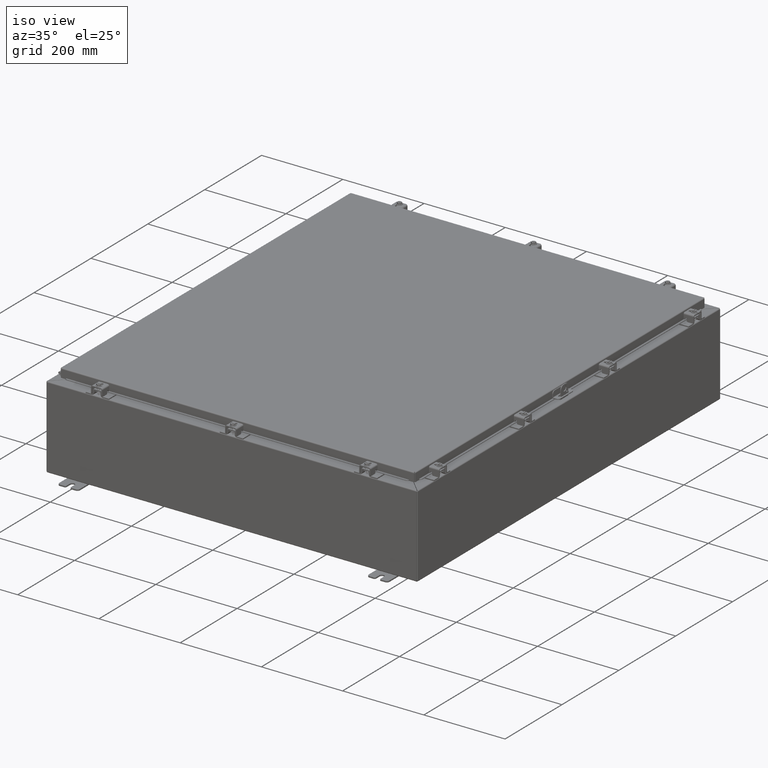
[diagram: clean part render]
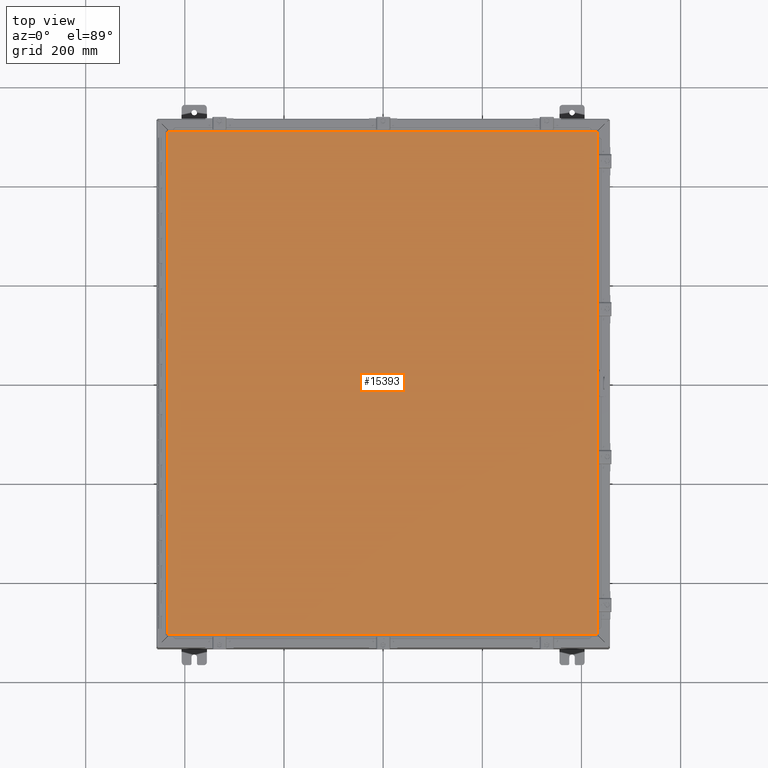
[diagram: tour spotlight — one face highlighted and labeled with its STEP entity id]
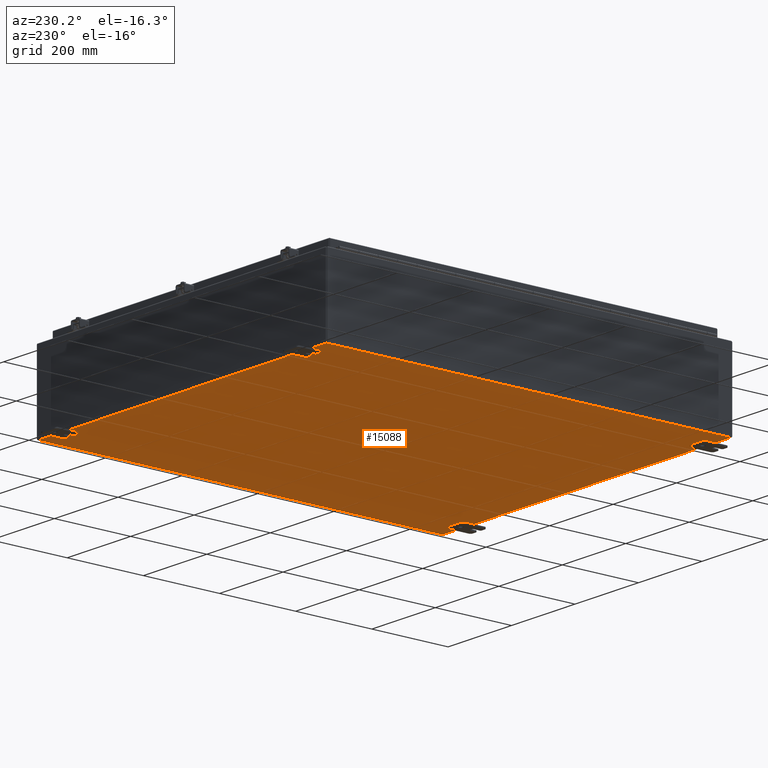
[diagram: tour spotlight — one face highlighted and labeled with its STEP entity id]
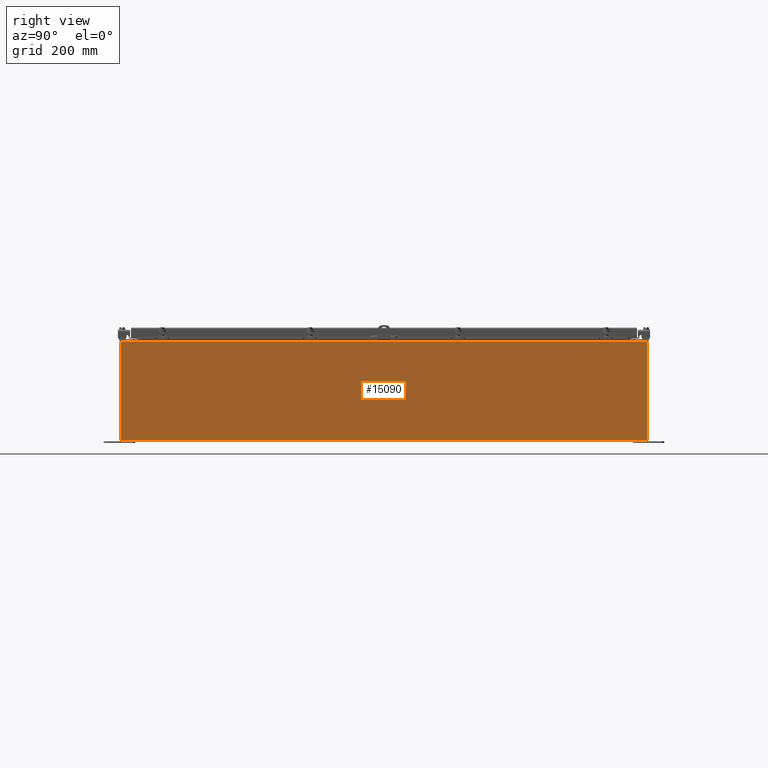
[diagram: tour spotlight — one face highlighted and labeled with its STEP entity id]
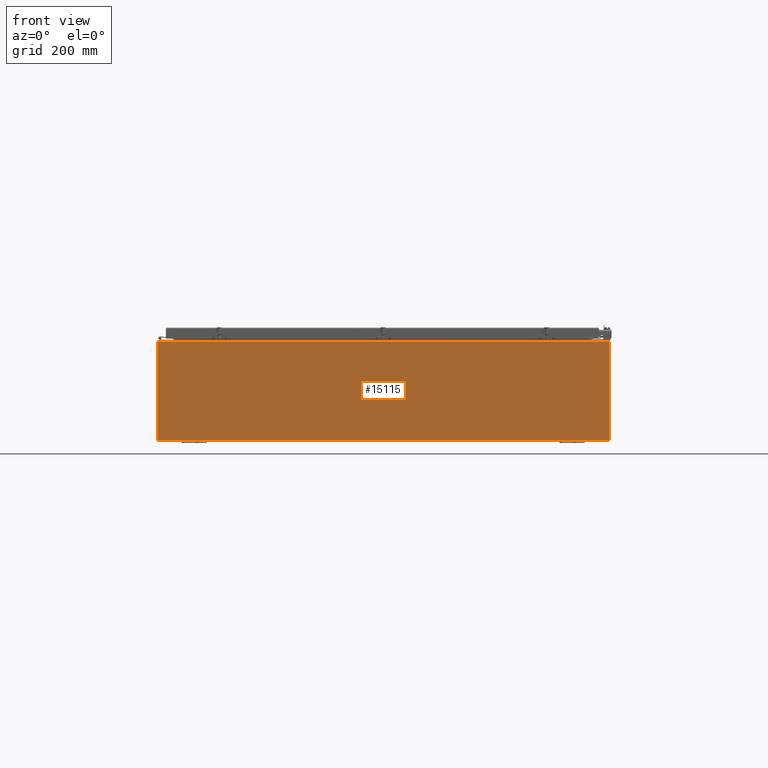
[diagram: tour spotlight — one face highlighted and labeled with its STEP entity id]
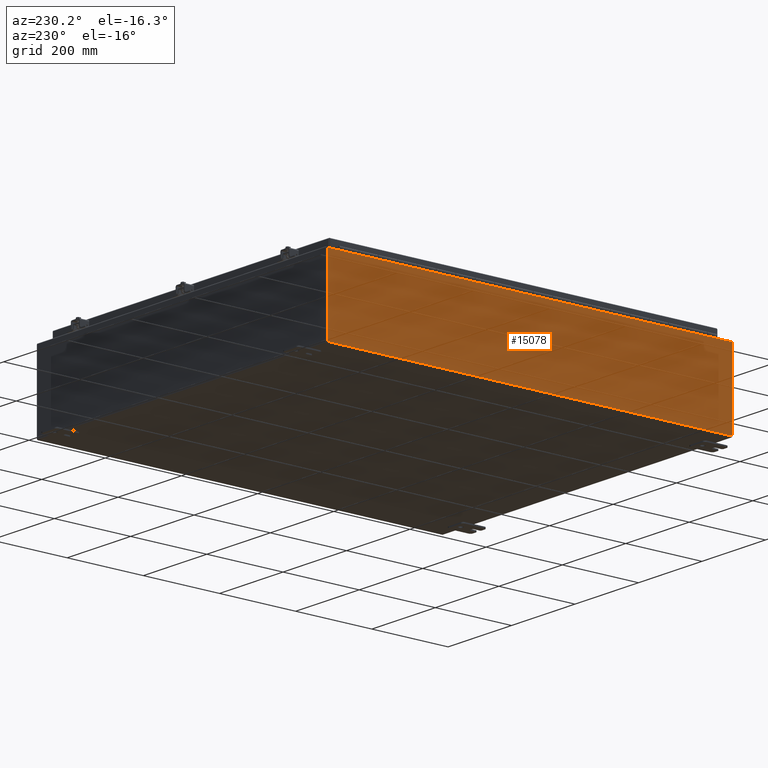
[diagram: tour spotlight — one face highlighted and labeled with its STEP entity id]
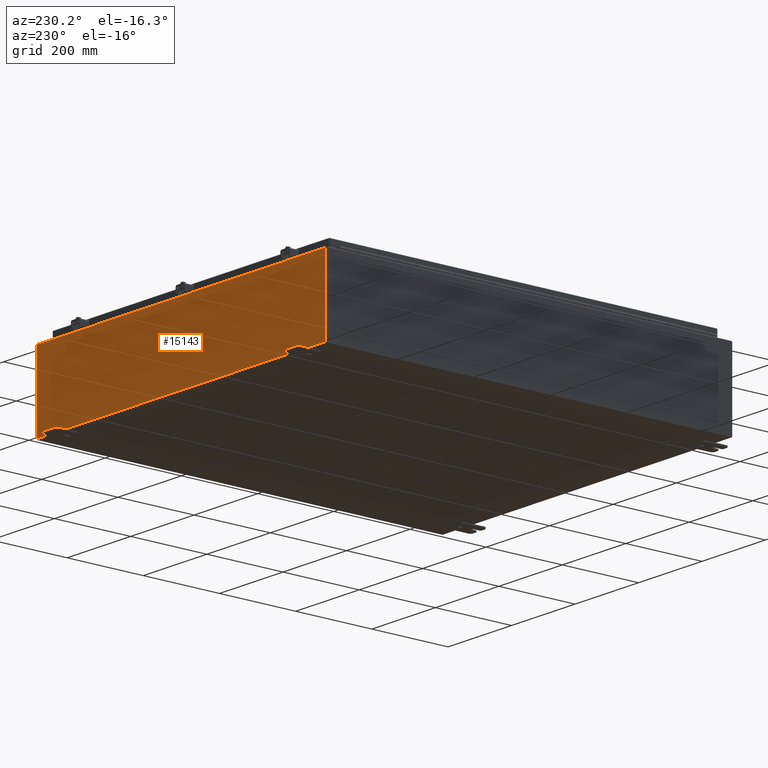
[diagram: tour spotlight — one face highlighted and labeled with its STEP entity id]
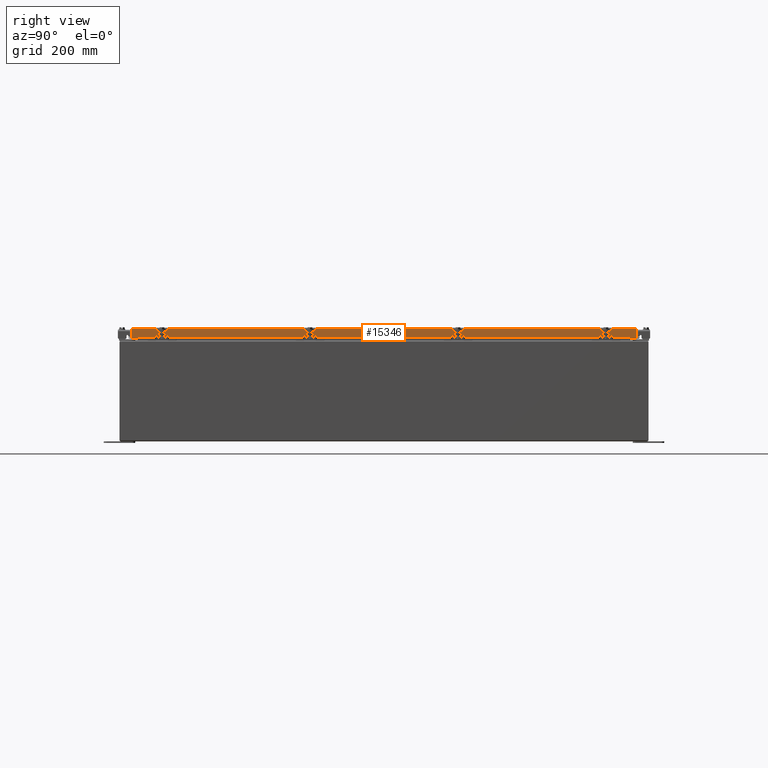
[diagram: tour spotlight — one face highlighted and labeled with its STEP entity id]
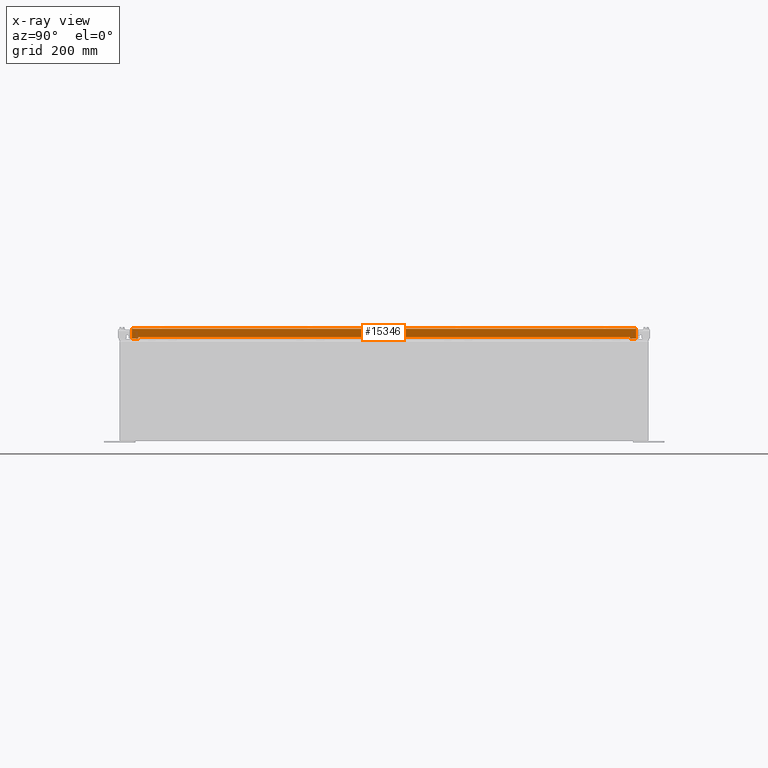
[diagram: x-ray of the same camera — body ghosted, this tour face saturated]
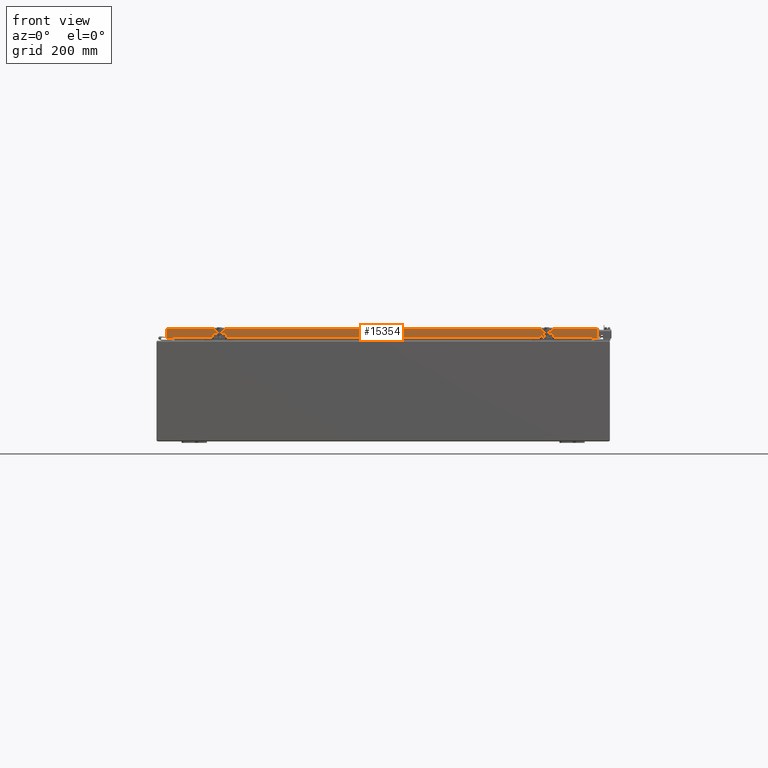
[diagram: tour spotlight — one face highlighted and labeled with its STEP entity id]
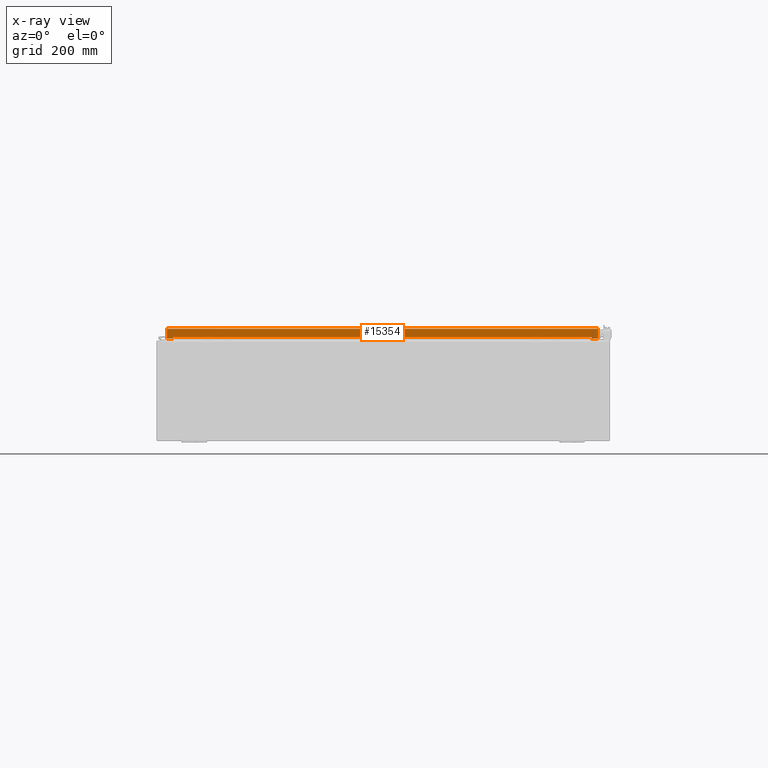
[diagram: x-ray of the same camera — body ghosted, this tour face saturated]
A machine part: a face-by-face anatomy tour. The part has 2137 B-rep faces; the first image is the clean iso view, then the 8 largest visible faces are spotlighted one at a time (largest first), each with its STEP entity span.

Face 1 — top view, entity #15393. In plain terms, the highlighted planar face has unit normal (0, -0, -1).
Definition (entity closure, byte-faithful):
#1534=PLANE('',#16301);
#2176=FACE_OUTER_BOUND('',#3037,.T.);
#3037=EDGE_LOOP('',(#12104,#12105,#12106,#12107));
#4059=LINE('',#25088,#5479);
#4065=LINE('',#25209,#5485);
#4075=LINE('',#25362,#5495);
#4078=LINE('',#25395,#5498);
#5479=VECTOR('',#18502,34.1645);
#5485=VECTOR('',#18516,34.1645);
#5495=VECTOR('',#18538,39.977);
#5498=VECTOR('',#18547,39.977);
#7380=VERTEX_POINT('',#25079);
#7381=VERTEX_POINT('',#25087);
#7384=VERTEX_POINT('',#25157);
#7385=VERTEX_POINT('',#25201);
#9096=EDGE_CURVE('',#7381,#7380,#4059,.T.);
#9109=EDGE_CURVE('',#7384,#7385,#4065,.T.);
#9126=EDGE_CURVE('',#7380,#7384,#4075,.T.);
#9130=EDGE_CURVE('',#7385,#7381,#4078,.T.);
#12104=ORIENTED_EDGE('',*,*,#9126,.T.);
#12105=ORIENTED_EDGE('',*,*,#9109,.T.);
#12106=ORIENTED_EDGE('',*,*,#9130,.T.);
#12107=ORIENTED_EDGE('',*,*,#9096,.T.);
#15393=ADVANCED_FACE('',(#2176),#1534,.F.);
#16301=AXIS2_PLACEMENT_3D('',#25475,#18561,#18562);
#18502=DIRECTION('',(-1.,-8.16292020079576E-17,0.));
#18516=DIRECTION('',(1.,0.,0.));
#18538=DIRECTION('',(-1.39951089151873E-16,1.,0.));
#18547=DIRECTION('',(0.,-1.,0.));
#18561=DIRECTION('center_axis',(0.,0.,1.));
#18562=DIRECTION('ref_axis',(1.,0.,0.));
#25079=CARTESIAN_POINT('',(-17.08225,-19.9885,-3.27821759239712E-17));
#25087=CARTESIAN_POINT('',(17.08225,-19.9885,-2.18547839493141E-17));
#25088=CARTESIAN_POINT('',(8.541125,-19.9885,0.));
#25157=CARTESIAN_POINT('',(-17.08225,19.9885,-3.27821759239712E-17));
#25201=CARTESIAN_POINT('',(17.08225,19.9885,-3.27821759239712E-17));
#25209=CARTESIAN_POINT('',(-8.59375,19.9885,0.));
#25362=CARTESIAN_POINT('',(-17.08225,-9.99425,0.));
#25395=CARTESIAN_POINT('',(17.08225,9.99425,0.));
#25475=CARTESIAN_POINT('Origin',(-2.09805925913415E-15,6.55429683665806E-15,
0.));

Face 2 — auxiliary view, entity #15088. In plain terms, the highlighted planar face has unit normal (0, 0, 1).
Definition (entity closure, byte-faithful):
#1381=PLANE('',#15988);
#1871=FACE_OUTER_BOUND('',#2722,.T.);
#2722=EDGE_LOOP('',(#10736,#10737,#10738,#10739));
#3619=LINE('',#21544,#5039);
#3641=LINE('',#21695,#5061);
#3642=LINE('',#21697,#5062);
#3643=LINE('',#21698,#5063);
#5039=VECTOR('',#17436,41.7895);
#5061=VECTOR('',#17496,35.7895);
#5062=VECTOR('',#17497,41.7895);
#5063=VECTOR('',#17498,35.7895);
#6981=VERTEX_POINT('',#21535);
#6982=VERTEX_POINT('',#21543);
#7015=VERTEX_POINT('',#21694);
#7016=VERTEX_POINT('',#21696);
#8425=EDGE_CURVE('',#6982,#6981,#3619,.T.);
#8468=EDGE_CURVE('',#6981,#7015,#3641,.T.);
#8469=EDGE_CURVE('',#7015,#7016,#3642,.T.);
#8470=EDGE_CURVE('',#7016,#6982,#3643,.T.);
#10736=ORIENTED_EDGE('',*,*,#8425,.T.);
#10737=ORIENTED_EDGE('',*,*,#8468,.T.);
#10738=ORIENTED_EDGE('',*,*,#8469,.T.);
#10739=ORIENTED_EDGE('',*,*,#8470,.T.);
#15088=ADVANCED_FACE('',(#1871),#1381,.F.);
#15988=AXIS2_PLACEMENT_3D('',#21693,#17494,#17495);
#17436=DIRECTION('',(-1.33881111069154E-16,1.,0.));
#17494=DIRECTION('center_axis',(0.,0.,1.));
#17495=DIRECTION('ref_axis',(1.,0.,0.));
#17496=DIRECTION('',(1.,0.,0.));
#17497=DIRECTION('',(0.,-1.,0.));
#17498=DIRECTION('',(-1.,-1.56325869068425E-16,0.));
#21535=CARTESIAN_POINT('',(-17.89475,20.89475,-1.09273919746571E-17));
#21543=CARTESIAN_POINT('',(-17.89475,-20.89475,-1.09273919746571E-17));
#21544=CARTESIAN_POINT('',(-17.89475,-10.447375,0.));
#21693=CARTESIAN_POINT('Origin',(-4.19611851826831E-15,3.49676543189026E-15,
0.));
#21694=CARTESIAN_POINT('',(17.89475,20.89475,-2.18547839493141E-17));
#21695=CARTESIAN_POINT('',(-8.947375,20.89475,0.));
#21696=CARTESIAN_POINT('',(17.89475,-20.89475,-3.27821759239712E-17));
#21697=CARTESIAN_POINT('',(17.89475,10.447375,0.));
#21698=CARTESIAN_POINT('',(8.947375,-20.89475,0.));

Face 3 — right view, entity #15090. In plain terms, the highlighted planar face has unit normal (-1, 0, 0).
Definition (entity closure, byte-faithful):
#1382=PLANE('',#15990);
#1873=FACE_OUTER_BOUND('',#2724,.T.);
#2724=EDGE_LOOP('',(#10744,#10745,#10746,#10747));
#3644=LINE('',#21709,#5064);
#3645=LINE('',#21719,#5065);
#3646=LINE('',#21721,#5066);
#3647=LINE('',#21722,#5067);
#5064=VECTOR('',#17501,41.8505857864376);
#5065=VECTOR('',#17504,7.7895);
#5066=VECTOR('',#17505,41.8505857864376);
#5067=VECTOR('',#17506,7.7895);
#7017=VERTEX_POINT('',#21700);
#7018=VERTEX_POINT('',#21708);
#7019=VERTEX_POINT('',#21718);
#7020=VERTEX_POINT('',#21720);
#8472=EDGE_CURVE('',#7018,#7017,#3644,.T.);
#8474=EDGE_CURVE('',#7019,#7017,#3645,.T.);
#8475=EDGE_CURVE('',#7019,#7020,#3646,.T.);
#8476=EDGE_CURVE('',#7018,#7020,#3647,.T.);
#10744=ORIENTED_EDGE('',*,*,#8472,.T.);
#10745=ORIENTED_EDGE('',*,*,#8474,.F.);
#10746=ORIENTED_EDGE('',*,*,#8475,.T.);
#10747=ORIENTED_EDGE('',*,*,#8476,.F.);
#15090=ADVANCED_FACE('',(#1873),#1382,.F.);
#15990=AXIS2_PLACEMENT_3D('',#21717,#17502,#17503);
#17501=DIRECTION('',(9.60540784130798E-19,1.,-5.17760573407768E-33));
#17502=DIRECTION('center_axis',(-1.,9.60540784130798E-19,5.25392373732437E-15));
#17503=DIRECTION('ref_axis',(9.02389274415327E-15,0.,1.));
#17504=DIRECTION('',(-5.39030285815812E-15,0.,-1.));
#17505=DIRECTION('',(-9.60540784129393E-19,-1.,2.67371392103071E-16));
#17506=DIRECTION('',(5.39030285815812E-15,0.,1.));
#21700=CARTESIAN_POINT('',(18.,20.9252928932188,0.105250000000001));
#21708=CARTESIAN_POINT('',(18.,-20.9252928932188,0.105250000000007));
#21709=CARTESIAN_POINT('',(18.,-8.74221566980225E-16,0.105250000000001));
#21717=CARTESIAN_POINT('Origin',(18.,-1.74838271594513E-15,4.02127600340134));
#21718=CARTESIAN_POINT('',(18.,20.9252928932188,7.89475));
#21719=CARTESIAN_POINT('',(18.,20.9252928932188,0.105250000000001));
#21720=CARTESIAN_POINT('',(18.,-20.9252928932188,7.89475000000001));
#21721=CARTESIAN_POINT('',(18.,10.4626464466094,7.89475));
#21722=CARTESIAN_POINT('',(18.,-20.9252928932188,0.105250000000007));

Face 4 — front view, entity #15115. In plain terms, the highlighted planar face has unit normal (-0, 1, 0).
Definition (entity closure, byte-faithful):
#1396=PLANE('',#16021);
#1898=FACE_OUTER_BOUND('',#2749,.T.);
#2749=EDGE_LOOP('',(#10861,#10862,#10863,#10864));
#3700=LINE('',#22103,#5120);
#3701=LINE('',#22121,#5121);
#3702=LINE('',#22122,#5122);
#3703=LINE('',#22123,#5123);
#5120=VECTOR('',#17619,35.8505857864376);
#5121=VECTOR('',#17622,35.8505857864376);
#5122=VECTOR('',#17623,7.7895);
#5123=VECTOR('',#17624,7.7895);
#7089=VERTEX_POINT('',#22101);
#7090=VERTEX_POINT('',#22102);
#7091=VERTEX_POINT('',#22119);
#7092=VERTEX_POINT('',#22120);
#8564=EDGE_CURVE('',#7089,#7090,#3700,.T.);
#8567=EDGE_CURVE('',#7091,#7092,#3701,.T.);
#8568=EDGE_CURVE('',#7089,#7092,#3702,.T.);
#8569=EDGE_CURVE('',#7091,#7090,#3703,.T.);
#10861=ORIENTED_EDGE('',*,*,#8567,.T.);
#10862=ORIENTED_EDGE('',*,*,#8568,.F.);
#10863=ORIENTED_EDGE('',*,*,#8564,.T.);
#10864=ORIENTED_EDGE('',*,*,#8569,.F.);
#15115=ADVANCED_FACE('',(#1898),#1396,.F.);
#16021=AXIS2_PLACEMENT_3D('',#22118,#17620,#17621);
#17619=DIRECTION('',(-1.,-1.53925497455997E-16,1.56059505536474E-16));
#17620=DIRECTION('center_axis',(-1.53925497455997E-16,1.,5.25291982588934E-15));
#17621=DIRECTION('ref_axis',(1.,0.,0.));
#17622=DIRECTION('',(1.,1.53925497455997E-16,-8.01160453404511E-33));
#17623=DIRECTION('',(-8.38164711797325E-31,5.39030285815812E-15,-1.));
#17624=DIRECTION('',(8.38164711797325E-31,-5.39030285815812E-15,1.));
#22101=CARTESIAN_POINT('',(17.9252928932188,-21.,7.89475));
#22102=CARTESIAN_POINT('',(-17.9252928932188,-21.,7.89475000000001));
#22103=CARTESIAN_POINT('',(8.9626464466094,-21.,7.89475));
#22118=CARTESIAN_POINT('Origin',(-2.35100148573447E-15,-21.,4.02153807738617));
#22119=CARTESIAN_POINT('',(-17.9252928932188,-21.,0.105250000000001));
#22120=CARTESIAN_POINT('',(17.9252928932188,-21.,0.105250000000001));
#22121=CARTESIAN_POINT('',(-1.16736894117134E-15,-21.,0.105249999999998));
#22122=CARTESIAN_POINT('',(17.9252928932188,-21.,0.105250000000001));
#22123=CARTESIAN_POINT('',(-17.9252928932188,-21.,0.105250000000001));

Face 5 — auxiliary view, entity #15078. In plain terms, the highlighted planar face has unit normal (1, 0, 0).
Definition (entity closure, byte-faithful):
#1376=PLANE('',#15970);
#1861=FACE_OUTER_BOUND('',#2712,.T.);
#2712=EDGE_LOOP('',(#10686,#10687,#10688,#10689));
#3618=LINE('',#21534,#5038);
#3620=LINE('',#21555,#5040);
#3621=LINE('',#21556,#5041);
#3622=LINE('',#21557,#5042);
#5038=VECTOR('',#17435,41.8505857864376);
#5040=VECTOR('',#17439,41.8505857864376);
#5041=VECTOR('',#17440,7.7895);
#5042=VECTOR('',#17441,7.7895);
#6979=VERTEX_POINT('',#21532);
#6980=VERTEX_POINT('',#21533);
#6983=VERTEX_POINT('',#21553);
#6984=VERTEX_POINT('',#21554);
#8423=EDGE_CURVE('',#6979,#6980,#3618,.T.);
#8427=EDGE_CURVE('',#6983,#6984,#3620,.T.);
#8428=EDGE_CURVE('',#6979,#6984,#3621,.T.);
#8429=EDGE_CURVE('',#6983,#6980,#3622,.T.);
#10686=ORIENTED_EDGE('',*,*,#8427,.T.);
#10687=ORIENTED_EDGE('',*,*,#8428,.F.);
#10688=ORIENTED_EDGE('',*,*,#8423,.T.);
#10689=ORIENTED_EDGE('',*,*,#8429,.F.);
#15078=ADVANCED_FACE('',(#1861),#1376,.F.);
#15970=AXIS2_PLACEMENT_3D('',#21552,#17437,#17438);
#17435=DIRECTION('',(1.32115673122401E-16,-1.,-5.89935534470948E-33));
#17437=DIRECTION('center_axis',(1.,1.32115673122401E-16,5.25319081936691E-15));
#17438=DIRECTION('ref_axis',(9.02389274415327E-15,-1.33210111691057E-16,
-1.));
#17439=DIRECTION('',(-1.32115673122401E-16,1.,1.33685696051535E-16));
#17440=DIRECTION('',(-5.39030285815812E-15,-7.14905195356542E-31,1.));
#17441=DIRECTION('',(5.39030285815812E-15,7.14905195356542E-31,-1.));
#21532=CARTESIAN_POINT('',(-18.,20.9252928932188,0.105250000000007));
#21533=CARTESIAN_POINT('',(-18.,-20.9252928932188,0.105250000000001));
#21534=CARTESIAN_POINT('',(-18.,2.17449295710507E-15,0.105250000000004));
#21552=CARTESIAN_POINT('Origin',(-18.,1.56552509276744E-15,4.02127600340134));
#21553=CARTESIAN_POINT('',(-18.,-20.9252928932188,7.89475));
#21554=CARTESIAN_POINT('',(-18.,20.9252928932188,7.89475000000001));
#21555=CARTESIAN_POINT('',(-18.,-10.4626464466094,7.89475));
#21556=CARTESIAN_POINT('',(-18.,20.9252928932188,0.105250000000007));
#21557=CARTESIAN_POINT('',(-18.,-20.9252928932188,0.105250000000001));

Face 6 — auxiliary view, entity #15143. In plain terms, the highlighted planar face has unit normal (-0, -1, 0).
Definition (entity closure, byte-faithful):
#1404=PLANE('',#16052);
#1926=FACE_OUTER_BOUND('',#2777,.T.);
#2777=EDGE_LOOP('',(#10991,#10992,#10993,#10994));
#3739=LINE('',#22727,#5159);
#3740=LINE('',#22737,#5160);
#3741=LINE('',#22739,#5161);
#3742=LINE('',#22740,#5162);
#5159=VECTOR('',#17720,35.8505857864376);
#5160=VECTOR('',#17723,7.7895);
#5161=VECTOR('',#17724,35.8505857864376);
#5162=VECTOR('',#17725,7.7895);
#7145=VERTEX_POINT('',#22718);
#7146=VERTEX_POINT('',#22726);
#7147=VERTEX_POINT('',#22736);
#7148=VERTEX_POINT('',#22738);
#8656=EDGE_CURVE('',#7146,#7145,#3739,.T.);
#8658=EDGE_CURVE('',#7147,#7145,#3740,.T.);
#8659=EDGE_CURVE('',#7147,#7148,#3741,.T.);
#8660=EDGE_CURVE('',#7146,#7148,#3742,.T.);
#10991=ORIENTED_EDGE('',*,*,#8656,.T.);
#10992=ORIENTED_EDGE('',*,*,#8658,.F.);
#10993=ORIENTED_EDGE('',*,*,#8659,.T.);
#10994=ORIENTED_EDGE('',*,*,#8660,.F.);
#15143=ADVANCED_FACE('',(#1926),#1404,.F.);
#16052=AXIS2_PLACEMENT_3D('',#22735,#17721,#17722);
#17720=DIRECTION('',(1.,-1.30385140683498E-18,1.56059505536474E-16));
#17721=DIRECTION('center_axis',(-1.3038514068358E-18,-1.,5.25273705619179E-15));
#17722=DIRECTION('ref_axis',(1.,0.,0.));
#17723=DIRECTION('',(0.,5.39030285815812E-15,1.));
#17724=DIRECTION('',(-1.,1.3038514068358E-18,-7.02815396488051E-33));
#17725=DIRECTION('',(0.,-5.39030285815812E-15,-1.));
#22718=CARTESIAN_POINT('',(17.9252928932188,21.,7.89475));
#22726=CARTESIAN_POINT('',(-17.9252928932188,21.,7.89475));
#22727=CARTESIAN_POINT('',(-8.9626464466094,21.,7.89475));
#22735=CARTESIAN_POINT('Origin',(1.04902962956708E-15,21.,4.02153807738617));
#22736=CARTESIAN_POINT('',(17.9252928932188,21.,0.105250000000001));
#22737=CARTESIAN_POINT('',(17.9252928932188,21.,0.105250000000001));
#22738=CARTESIAN_POINT('',(-17.9252928932188,21.,0.105249999999998));
#22739=CARTESIAN_POINT('',(-8.74150351845819E-16,21.,0.105250000000001));
#22740=CARTESIAN_POINT('',(-17.9252928932188,21.,0.105249999999998));

Face 7 — right view, entity #15346. An x-ray twin of the same camera follows (body ghosted, this face saturated) — the face is partly hidden behind the body. In plain terms, the highlighted planar face has unit normal (-1, -0, -0).
Definition (entity closure, byte-faithful):
#1508=PLANE('',#16267);
#2129=FACE_OUTER_BOUND('',#2990,.T.);
#2990=EDGE_LOOP('',(#11888,#11889,#11890,#11891,#11892,#11893,#11894,#11895,
#11896,#11897,#11898,#11899));
#3954=LINE('',#24756,#5374);
#3997=LINE('',#24858,#5417);
#4000=LINE('',#24866,#5420);
#4003=LINE('',#24870,#5423);
#4013=LINE('',#24891,#5433);
#4015=LINE('',#24895,#5435);
#4017=LINE('',#24898,#5437);
#4018=LINE('',#24901,#5438);
#4019=LINE('',#24903,#5439);
#4020=LINE('',#24905,#5440);
#4021=LINE('',#24907,#5441);
#4022=LINE('',#24908,#5442);
#5374=VECTOR('',#18295,39.0380857864376);
#5417=VECTOR('',#18396,0.000199999999999981);
#5420=VECTOR('',#18401,0.10545);
#5423=VECTOR('',#18406,0.00020000000000138);
#5433=VECTOR('',#18420,0.10545);
#5435=VECTOR('',#18424,0.000199999999999981);
#5437=VECTOR('',#18428,0.00020000000000138);
#5438=VECTOR('',#18431,0.4998);
#5439=VECTOR('',#18432,0.76975);
#5440=VECTOR('',#18433,40.0380857864376);
#5441=VECTOR('',#18434,0.76975);
#5442=VECTOR('',#18435,0.499800000000005);
#7305=VERTEX_POINT('',#24747);
#7306=VERTEX_POINT('',#24751);
#7336=VERTEX_POINT('',#24856);
#7339=VERTEX_POINT('',#24863);
#7340=VERTEX_POINT('',#24865);
#7348=VERTEX_POINT('',#24888);
#7349=VERTEX_POINT('',#24890);
#7350=VERTEX_POINT('',#24894);
#7351=VERTEX_POINT('',#24900);
#7352=VERTEX_POINT('',#24902);
#7353=VERTEX_POINT('',#24904);
#7354=VERTEX_POINT('',#24906);
#8974=EDGE_CURVE('',#7305,#7306,#3954,.T.);
#9025=EDGE_CURVE('',#7306,#7336,#3997,.T.);
#9028=EDGE_CURVE('',#7340,#7339,#4000,.T.);
#9031=EDGE_CURVE('',#7336,#7340,#4003,.T.);
#9041=EDGE_CURVE('',#7349,#7348,#4013,.T.);
#9043=EDGE_CURVE('',#7350,#7305,#4015,.T.);
#9045=EDGE_CURVE('',#7348,#7350,#4017,.T.);
#9046=EDGE_CURVE('',#7351,#7339,#4018,.T.);
#9047=EDGE_CURVE('',#7352,#7351,#4019,.T.);
#9048=EDGE_CURVE('',#7352,#7353,#4020,.T.);
#9049=EDGE_CURVE('',#7354,#7353,#4021,.T.);
#9050=EDGE_CURVE('',#7349,#7354,#4022,.T.);
#11888=ORIENTED_EDGE('',*,*,#9028,.T.);
#11889=ORIENTED_EDGE('',*,*,#9046,.F.);
#11890=ORIENTED_EDGE('',*,*,#9047,.F.);
#11891=ORIENTED_EDGE('',*,*,#9048,.T.);
#11892=ORIENTED_EDGE('',*,*,#9049,.F.);
#11893=ORIENTED_EDGE('',*,*,#9050,.F.);
#11894=ORIENTED_EDGE('',*,*,#9041,.T.);
#11895=ORIENTED_EDGE('',*,*,#9045,.T.);
#11896=ORIENTED_EDGE('',*,*,#9043,.T.);
#11897=ORIENTED_EDGE('',*,*,#8974,.T.);
#11898=ORIENTED_EDGE('',*,*,#9025,.T.);
#11899=ORIENTED_EDGE('',*,*,#9031,.T.);
#15346=ADVANCED_FACE('',(#2129),#1508,.F.);
#16267=AXIS2_PLACEMENT_3D('',#24899,#18429,#18430);
#18295=DIRECTION('',(-1.15569155073123E-18,-1.,5.46105711422253E-33));
#18396=DIRECTION('',(-4.0343628283179E-15,0.,-1.));
#18401=DIRECTION('',(4.0343628283179E-15,0.,1.));
#18406=DIRECTION('',(-1.15569155073123E-18,-1.,4.0957928356669E-33));
#18420=DIRECTION('',(-4.0343628283179E-15,0.,-1.));
#18424=DIRECTION('',(4.0343628283179E-15,0.,1.));
#18428=DIRECTION('',(-1.15569155073123E-18,-1.,4.0957928356669E-33));
#18429=DIRECTION('center_axis',(-1.,1.15569155073123E-18,4.0343628283179E-15));
#18430=DIRECTION('ref_axis',(0.,0.,1.));
#18431=DIRECTION('',(0.,1.,0.));
#18432=DIRECTION('',(5.39030285815812E-15,0.,1.));
#18433=DIRECTION('',(1.15569155073123E-18,1.,-6.22952746905573E-33));
#18434=DIRECTION('',(-5.39030285815812E-15,0.,-1.));
#18435=DIRECTION('',(0.,1.,0.));
#24747=CARTESIAN_POINT('',(17.1875,19.5190428932188,0.769749999999998));
#24751=CARTESIAN_POINT('',(17.1875,-19.5190428932188,0.769749999999998));
#24756=CARTESIAN_POINT('',(17.1875,-9.7595214466094,0.769749999999998));
#24856=CARTESIAN_POINT('',(17.1875,-19.5190428932188,0.769549999999998));
#24858=CARTESIAN_POINT('',(17.1875,-19.5190428932188,0.613331557289605));
#24863=CARTESIAN_POINT('',(17.1875,-19.5192428932188,0.874999999999999));
#24865=CARTESIAN_POINT('',(17.1875,-19.5192428932188,0.769549999999998));
#24866=CARTESIAN_POINT('',(17.1875,-19.5192428932188,0.666056557289605));
#24870=CARTESIAN_POINT('',(17.1875,-9.75962144660941,0.769549999999998));
#24888=CARTESIAN_POINT('',(17.1875,19.5192428932188,0.769549999999998));
#24890=CARTESIAN_POINT('',(17.1875,19.5192428932188,0.874999999999999));
#24891=CARTESIAN_POINT('',(17.1875,19.5192428932188,0.613331557289605));
#24894=CARTESIAN_POINT('',(17.1875,19.5190428932188,0.769549999999998));
#24895=CARTESIAN_POINT('',(17.1875,19.5190428932188,0.666056557289605));
#24898=CARTESIAN_POINT('',(17.1875,9.7595214466094,0.769549999999998));
#24899=CARTESIAN_POINT('Origin',(17.1875,0.,0.457113114579211));
#24900=CARTESIAN_POINT('',(17.1875,-20.0190428932188,0.874999999999999));
#24901=CARTESIAN_POINT('',(17.1875,-20.0190428932188,0.874999999999999));
#24902=CARTESIAN_POINT('',(17.1875,-20.0190428932188,0.105250000000001));
#24903=CARTESIAN_POINT('',(17.1875,-20.0190428932188,0.105250000000001));
#24904=CARTESIAN_POINT('',(17.1875,20.0190428932188,0.105250000000001));
#24905=CARTESIAN_POINT('',(17.1875,2.79737599901293E-15,0.105250000000001));
#24906=CARTESIAN_POINT('',(17.1875,20.0190428932188,0.874999999999999));
#24907=CARTESIAN_POINT('',(17.1875,20.0190428932188,0.105250000000001));
#24908=CARTESIAN_POINT('',(17.1875,-20.0190428932188,0.874999999999999));

Face 8 — front view, entity #15354. An x-ray twin of the same camera follows (body ghosted, this face saturated) — the face is partly hidden behind the body. In plain terms, the highlighted planar face has unit normal (-0, 1, -0).
Definition (entity closure, byte-faithful):
#1516=PLANE('',#16275);
#2137=FACE_OUTER_BOUND('',#2998,.T.);
#2998=EDGE_LOOP('',(#11936,#11937,#11938,#11939,#11940,#11941,#11942,#11943,
#11944,#11945,#11946,#11947));
#3960=LINE('',#24776,#5380);
#4025=LINE('',#24914,#5445);
#4028=LINE('',#24922,#5448);
#4031=LINE('',#24926,#5451);
#4041=LINE('',#24947,#5461);
#4043=LINE('',#24951,#5463);
#4045=LINE('',#24954,#5465);
#4046=LINE('',#24957,#5466);
#4047=LINE('',#24959,#5467);
#4048=LINE('',#24961,#5468);
#4049=LINE('',#24963,#5469);
#4050=LINE('',#24964,#5470);
#5380=VECTOR('',#18321,33.2255857864376);
#5445=VECTOR('',#18440,0.000199999999999981);
#5448=VECTOR('',#18445,0.10545);
#5451=VECTOR('',#18450,0.00020000000000138);
#5461=VECTOR('',#18464,0.10545);
#5463=VECTOR('',#18468,0.000199999999999981);
#5465=VECTOR('',#18472,0.00020000000000138);
#5466=VECTOR('',#18475,0.4998);
#5467=VECTOR('',#18476,0.76975);
#5468=VECTOR('',#18477,34.2255857864376);
#5469=VECTOR('',#18478,0.769749999999994);
#5470=VECTOR('',#18479,0.4998);
#7309=VERTEX_POINT('',#24765);
#7310=VERTEX_POINT('',#24769);
#7356=VERTEX_POINT('',#24912);
#7359=VERTEX_POINT('',#24919);
#7360=VERTEX_POINT('',#24921);
#7368=VERTEX_POINT('',#24944);
#7369=VERTEX_POINT('',#24946);
#7370=VERTEX_POINT('',#24950);
#7371=VERTEX_POINT('',#24956);
#7372=VERTEX_POINT('',#24958);
#7373=VERTEX_POINT('',#24960);
#7374=VERTEX_POINT('',#24962);
#8984=EDGE_CURVE('',#7309,#7310,#3960,.T.);
#9053=EDGE_CURVE('',#7310,#7356,#4025,.T.);
#9056=EDGE_CURVE('',#7360,#7359,#4028,.T.);
#9059=EDGE_CURVE('',#7356,#7360,#4031,.T.);
#9069=EDGE_CURVE('',#7369,#7368,#4041,.T.);
#9071=EDGE_CURVE('',#7370,#7309,#4043,.T.);
#9073=EDGE_CURVE('',#7368,#7370,#4045,.T.);
#9074=EDGE_CURVE('',#7371,#7359,#4046,.T.);
#9075=EDGE_CURVE('',#7372,#7371,#4047,.T.);
#9076=EDGE_CURVE('',#7372,#7373,#4048,.T.);
#9077=EDGE_CURVE('',#7374,#7373,#4049,.T.);
#9078=EDGE_CURVE('',#7369,#7374,#4050,.T.);
#11936=ORIENTED_EDGE('',*,*,#9056,.T.);
#11937=ORIENTED_EDGE('',*,*,#9074,.F.);
#11938=ORIENTED_EDGE('',*,*,#9075,.F.);
#11939=ORIENTED_EDGE('',*,*,#9076,.T.);
#11940=ORIENTED_EDGE('',*,*,#9077,.F.);
#11941=ORIENTED_EDGE('',*,*,#9078,.F.);
#11942=ORIENTED_EDGE('',*,*,#9069,.T.);
#11943=ORIENTED_EDGE('',*,*,#9073,.T.);
#11944=ORIENTED_EDGE('',*,*,#9071,.T.);
#11945=ORIENTED_EDGE('',*,*,#8984,.T.);
#11946=ORIENTED_EDGE('',*,*,#9053,.T.);
#11947=ORIENTED_EDGE('',*,*,#9059,.T.);
#15354=ADVANCED_FACE('',(#2137),#1516,.F.);
#16275=AXIS2_PLACEMENT_3D('',#24955,#18473,#18474);
#18321=DIRECTION('',(1.,-1.43350694494385E-18,4.04623155390475E-31));
#18440=DIRECTION('',(0.,-4.03001146476663E-15,-1.));
#18445=DIRECTION('',(0.,4.03001146476663E-15,1.));
#18450=DIRECTION('',(1.,-1.43350694494385E-18,5.080375876474E-33));
#18464=DIRECTION('',(0.,-4.03001146476663E-15,-1.));
#18468=DIRECTION('',(0.,4.03001146476663E-15,1.));
#18472=DIRECTION('',(1.,-1.43350694494385E-18,5.080375876474E-33));
#18473=DIRECTION('center_axis',(-1.43350694494385E-18,-1.,4.03001146476663E-15));
#18474=DIRECTION('ref_axis',(1.,0.,0.));
#18475=DIRECTION('',(-1.,0.,0.));
#18476=DIRECTION('',(0.,5.39030285815812E-15,1.));
#18477=DIRECTION('',(-1.,1.43350694494385E-18,-7.72703658252034E-33));
#18478=DIRECTION('',(7.26836595131462E-15,-4.03001146476663E-15,-1.));
#18479=DIRECTION('',(-1.,0.,0.));
#24765=CARTESIAN_POINT('',(-16.6127928932188,20.09375,0.769749999999998));
#24769=CARTESIAN_POINT('',(16.6127928932188,20.09375,0.769749999999998));
#24776=CARTESIAN_POINT('',(8.28480175595431,20.09375,0.769749999999998));
#24912=CARTESIAN_POINT('',(16.6127928932188,20.09375,0.769549999999998));
#24914=CARTESIAN_POINT('',(16.6127928932188,20.09375,0.613279302924804));
#24919=CARTESIAN_POINT('',(16.6129928932188,20.09375,0.874999999999998));
#24921=CARTESIAN_POINT('',(16.6129928932188,20.09375,0.769549999999998));
#24922=CARTESIAN_POINT('',(16.6129928932188,20.09375,0.666004302924804));
#24926=CARTESIAN_POINT('',(8.28490175595431,20.09375,0.769549999999998));
#24944=CARTESIAN_POINT('',(-16.6129928932188,20.09375,0.769549999999998));
#24946=CARTESIAN_POINT('',(-16.6129928932188,20.09375,0.874999999999998));
#24947=CARTESIAN_POINT('',(-16.6129928932188,20.09375,0.613279302924804));
#24950=CARTESIAN_POINT('',(-16.6127928932188,20.09375,0.769549999999998));
#24951=CARTESIAN_POINT('',(-16.6127928932188,20.09375,0.666004302924804));
#24954=CARTESIAN_POINT('',(-8.32799113726451,20.09375,0.769549999999998));
#24955=CARTESIAN_POINT('Origin',(-0.0431893813101986,20.09375,0.457008605849609));
#24956=CARTESIAN_POINT('',(17.1127928932188,20.09375,0.874999999999999));
#24957=CARTESIAN_POINT('',(17.1127928932188,20.09375,0.874999999999999));
#24958=CARTESIAN_POINT('',(17.1127928932188,20.09375,0.105250000000001));
#24959=CARTESIAN_POINT('',(17.1127928932188,20.09375,0.105250000000001));
#24960=CARTESIAN_POINT('',(-17.1127928932188,20.09375,0.105250000000004));
#24961=CARTESIAN_POINT('',(-0.047907190655101,20.09375,0.105250000000001));
#24962=CARTESIAN_POINT('',(-17.1127928932188,20.09375,0.874999999999998));
#24963=CARTESIAN_POINT('',(-17.1127928932188,20.09375,0.473566802924742));
#24964=CARTESIAN_POINT('',(17.1127928932188,20.09375,0.874999999999999));